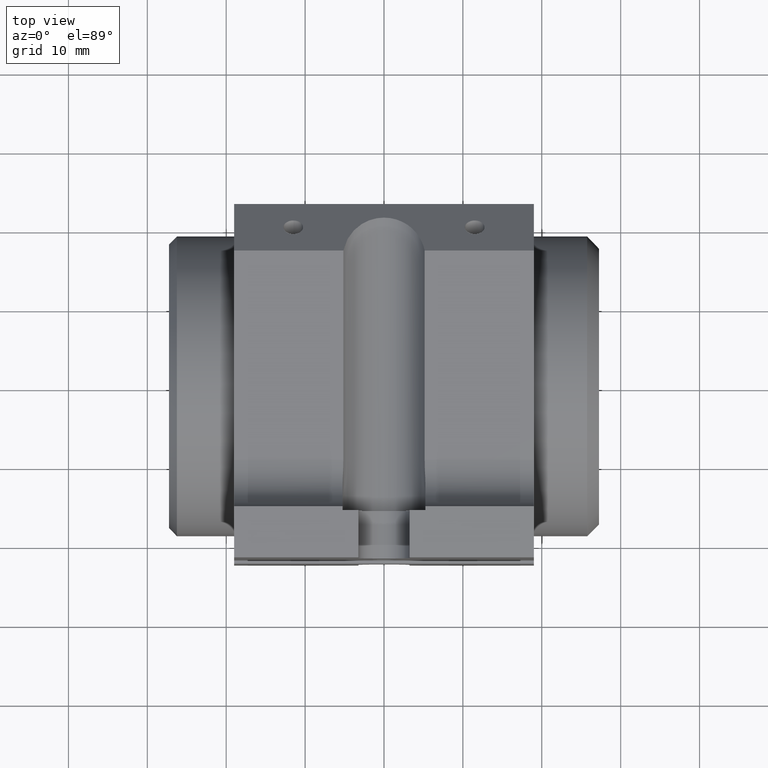
[diagram: clean part render]
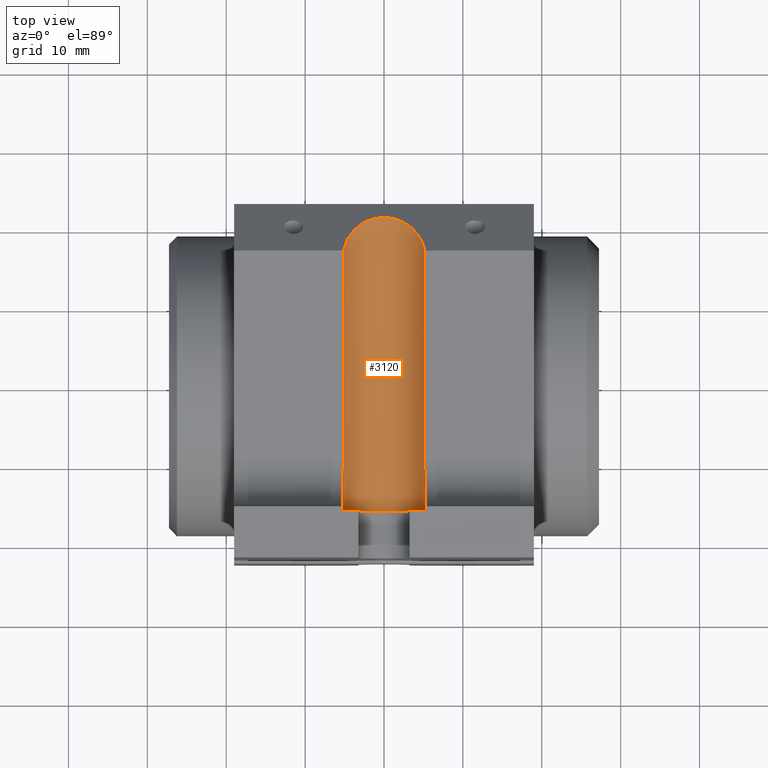
[diagram: same view with one face highlighted and labeled with its STEP entity id]
A machine part, top view. The second image highlights one B-rep face of the part: STEP entity #3120.
In plain terms, the highlighted cylindrical surface (partial cylindrical patch) has radius 5.25 mm, axis along (0, 1, 0).
Its self-contained STEP definition (entity closure, byte-faithful):
#15 = CARTESIAN_POINT ( 'NONE',  ( 0.000000000000000000, -16.19999999999999929, 25.00000000000000000 ) ) ;
#41 = CARTESIAN_POINT ( 'NONE',  ( -5.173734023537535087, -10.86710466257910568, 24.10732403996881246 ) ) ;
#215 = CARTESIAN_POINT ( 'NONE',  ( -5.250000000000000000, 22.80000000000000071, 25.00000000000000000 ) ) ;
#382 = CARTESIAN_POINT ( 'NONE',  ( -5.250000000000131450, -12.52433978790710967, 24.67345507139151550 ) ) ;
#409 = VERTEX_POINT ( 'NONE', #1677 ) ;
#478 = CIRCLE ( 'NONE', #2297, 5.250000000000000888 ) ;
#483 = CARTESIAN_POINT ( 'NONE',  ( -5.153882032022072401, 16.80000000000000782, 23.99999999999999289 ) ) ;
#492 = VECTOR ( 'NONE', #5561, 1000.000000000000000 ) ;
#499 = CARTESIAN_POINT ( 'NONE',  ( -5.153882032022072401, 22.80000000000000071, 23.99999999999998224 ) ) ;
#610 = VERTEX_POINT ( 'NONE', #1625 ) ;
#653 = CARTESIAN_POINT ( 'NONE',  ( 5.153882032022034210, 16.80000000000000071, 24.00000000000000000 ) ) ;
#684 = EDGE_CURVE ( 'NONE', #1525, #5983, #4838, .T. ) ;
#733 = DIRECTION ( 'NONE',  ( 0.000000000000000000, 1.000000000000000000, 0.000000000000000000 ) ) ;
#807 = CARTESIAN_POINT ( 'NONE',  ( 5.250000000000000888, -13.01662479035699960, 25.00000000000105871 ) ) ;
#825 = CARTESIAN_POINT ( 'NONE',  ( -5.250000000000000888, -16.19999999999999929, 25.00000000000000000 ) ) ;
#859 = LINE ( 'NONE', #5963, #3015 ) ;
#860 = CARTESIAN_POINT ( 'NONE',  ( 5.153882032021997794, 22.80000000000000071, 24.00000000000000000 ) ) ;
#968 = VERTEX_POINT ( 'NONE', #2658 ) ;
#1012 = CARTESIAN_POINT ( 'NONE',  ( 5.158223795871332840, -10.28769361951409422, 24.02167419147084360 ) ) ;
#1240 = CARTESIAN_POINT ( 'NONE',  ( 0.000000000000000000, 22.80000000000000071, 25.00000000000000000 ) ) ;
#1290 = EDGE_CURVE ( 'NONE', #2561, #610, #5270, .T. ) ;
#1297 = VECTOR ( 'NONE', #4873, 1000.000000000000000 ) ;
#1365 =( BOUNDED_CURVE ( )  B_SPLINE_CURVE ( 3, ( #483, #3057, #6081, #3708 ),
 .UNSPECIFIED., .F., .T. ) 
 B_SPLINE_CURVE_WITH_KNOTS ( ( 4, 4 ),
 ( 4.904036175360107386, 7.662334438999065966 ),
 .UNSPECIFIED. ) 
 CURVE ( )  GEOMETRIC_REPRESENTATION_ITEM ( )  RATIONAL_B_SPLINE_CURVE ( ( 1.000000000000000000, 0.4603174603174609025, 0.4603174603174609025, 1.000000000000000000 ) ) 
 REPRESENTATION_ITEM ( '' )  );
#1483 = ORIENTED_EDGE ( 'NONE', *, *, #5524, .T. ) ;
#1518 = CARTESIAN_POINT ( 'NONE',  ( -5.185001327738721244, -11.15608105725670640, 24.17198743703181307 ) ) ;
#1525 = VERTEX_POINT ( 'NONE', #825 ) ;
#1529 = DIRECTION ( 'NONE',  ( 0.000000000000000000, 0.000000000000000000, 1.000000000000000000 ) ) ;
#1625 = CARTESIAN_POINT ( 'NONE',  ( 5.153882032022036874, -9.700000000000001066, 24.00000000000000000 ) ) ;
#1677 = CARTESIAN_POINT ( 'NONE',  ( 5.250000000000000888, -16.19999999999999929, 25.00000000000000000 ) ) ;
#1794 = CARTESIAN_POINT ( 'NONE',  ( -5.250000000000000888, -13.01662479035699960, 25.00000000000106226 ) ) ;
#1831 = VERTEX_POINT ( 'NONE', #1870 ) ;
#1870 = CARTESIAN_POINT ( 'NONE',  ( -5.153882032022072401, 16.80000000000000782, 23.99999999999999289 ) ) ;
#1872 = DIRECTION ( 'NONE',  ( 0.000000000000000000, 1.000000000000000000, 0.000000000000000000 ) ) ;
#1883 = CARTESIAN_POINT ( 'NONE',  ( 5.173734023537535087, -10.86710466257910568, 24.10732403996881246 ) ) ;
#2052 = CARTESIAN_POINT ( 'NONE',  ( -5.221393684448369044, -11.99771907957374673, 24.42648253353140930 ) ) ;
#2064 = DIRECTION ( 'NONE',  ( 0.000000000000000000, 1.000000000000000000, 0.000000000000000000 ) ) ;
#2089 = CARTESIAN_POINT ( 'NONE',  ( -5.158223795871332840, -10.28769361951409422, 24.02167419147084360 ) ) ;
#2148 = VERTEX_POINT ( 'NONE', #653 ) ;
#2197 = ORIENTED_EDGE ( 'NONE', *, *, #4985, .F. ) ;
#2297 = AXIS2_PLACEMENT_3D ( 'NONE', #15, #2064, #1529 ) ;
#2561 = VERTEX_POINT ( 'NONE', #807 ) ;
#2658 = CARTESIAN_POINT ( 'NONE',  ( -5.153882032022074178, -9.700000000000001066, 23.99999999999999289 ) ) ;
#2773 = DIRECTION ( 'NONE',  ( 0.000000000000000000, 0.000000000000000000, 1.000000000000000000 ) ) ;
#2843 = LINE ( 'NONE', #860, #4325 ) ;
#2924 = CARTESIAN_POINT ( 'NONE',  ( -5.250000000000000888, -13.01662479035699960, 25.00000000000106226 ) ) ;
#2956 = EDGE_LOOP ( 'NONE', ( #2197, #5814, #4259, #3018, #1483, #6096, #4932, #4038 ) ) ;
#3015 = VECTOR ( 'NONE', #1872, 1000.000000000000000 ) ;
#3018 = ORIENTED_EDGE ( 'NONE', *, *, #3627, .F. ) ;
#3043 = LINE ( 'NONE', #499, #492 ) ;
#3057 = CARTESIAN_POINT ( 'NONE',  ( -3.732121471464257212, 24.12758620689655231, 16.67241379310345550 ) ) ;
#3120 = ADVANCED_FACE ( 'NONE', ( #6335 ), #5831, .F. ) ;
#3254 = AXIS2_PLACEMENT_3D ( 'NONE', #1240, #733, #2773 ) ;
#3407 = DIRECTION ( 'NONE',  ( -0.000000000000000000, -1.000000000000000000, 0.000000000000000000 ) ) ;
#3627 = EDGE_CURVE ( 'NONE', #409, #1525, #478, .T. ) ;
#3708 = CARTESIAN_POINT ( 'NONE',  ( 5.153882032022034210, 16.80000000000000071, 24.00000000000000000 ) ) ;
#3824 = EDGE_CURVE ( 'NONE', #1831, #2148, #1365, .T. ) ;
#3953 = EDGE_CURVE ( 'NONE', #2148, #610, #2843, .T. ) ;
#4018 = CARTESIAN_POINT ( 'NONE',  ( 5.221393684448369044, -11.99771907957374673, 24.42648253353140930 ) ) ;
#4038 = ORIENTED_EDGE ( 'NONE', *, *, #3824, .F. ) ;
#4078 = B_SPLINE_CURVE_WITH_KNOTS ( 'NONE', 3,
 ( #2924, #382, #2052, #1518, #41, #2089, #4121, #4089 ),
 .UNSPECIFIED., .F., .F.,
 ( 4, 2, 2, 4 ),
 ( 1.888053658162355340E-15, 0.001746437524642559204, 0.002619656286962895007, 0.003492875049283230594 ),
 .UNSPECIFIED. ) ;
#4089 = CARTESIAN_POINT ( 'NONE',  ( -5.153882032022074178, -9.700000000000001066, 23.99999999999999289 ) ) ;
#4121 = CARTESIAN_POINT ( 'NONE',  ( -5.153882032022075066, -9.995255976049165270, 24.00000000000000000 ) ) ;
#4259 = ORIENTED_EDGE ( 'NONE', *, *, #684, .F. ) ;
#4325 = VECTOR ( 'NONE', #3407, 1000.000000000000000 ) ;
#4489 = CARTESIAN_POINT ( 'NONE',  ( 5.250000000000000888, -13.01662479035699960, 25.00000000000105871 ) ) ;
#4838 = LINE ( 'NONE', #215, #1297 ) ;
#4873 = DIRECTION ( 'NONE',  ( 0.000000000000000000, 1.000000000000000000, 0.000000000000000000 ) ) ;
#4932 = ORIENTED_EDGE ( 'NONE', *, *, #3953, .F. ) ;
#4985 = EDGE_CURVE ( 'NONE', #968, #1831, #3043, .T. ) ;
#5270 = B_SPLINE_CURVE_WITH_KNOTS ( 'NONE', 3,
 ( #4489, #6101, #4018, #6621, #1883, #1012, #5973, #6549 ),
 .UNSPECIFIED., .F., .F.,
 ( 4, 2, 2, 4 ),
 ( 1.888053658162355340E-15, 0.001746437524642557903, 0.002619656286962893273, 0.003492875049283227992 ),
 .UNSPECIFIED. ) ;
#5524 = EDGE_CURVE ( 'NONE', #409, #2561, #859, .T. ) ;
#5561 = DIRECTION ( 'NONE',  ( 0.000000000000000000, 1.000000000000000000, 0.000000000000000000 ) ) ;
#5814 = ORIENTED_EDGE ( 'NONE', *, *, #6411, .F. ) ;
#5831 = CYLINDRICAL_SURFACE ( 'NONE', #3254, 5.250000000000000888 ) ;
#5963 = CARTESIAN_POINT ( 'NONE',  ( 5.250000000000000000, 22.80000000000000071, 25.00000000000000000 ) ) ;
#5973 = CARTESIAN_POINT ( 'NONE',  ( 5.153882032022075066, -9.995255976049165270, 24.00000000000000000 ) ) ;
#5983 = VERTEX_POINT ( 'NONE', #1794 ) ;
#6081 = CARTESIAN_POINT ( 'NONE',  ( 3.732121471464261653, 24.12758620689654165, 16.67241379310346616 ) ) ;
#6096 = ORIENTED_EDGE ( 'NONE', *, *, #1290, .T. ) ;
#6101 = CARTESIAN_POINT ( 'NONE',  ( 5.250000000000131450, -12.52433978790710967, 24.67345507139151550 ) ) ;
#6335 = FACE_OUTER_BOUND ( 'NONE', #2956, .T. ) ;
#6411 = EDGE_CURVE ( 'NONE', #5983, #968, #4078, .T. ) ;
#6549 = CARTESIAN_POINT ( 'NONE',  ( 5.153882032022036874, -9.700000000000001066, 24.00000000000000000 ) ) ;
#6621 = CARTESIAN_POINT ( 'NONE',  ( 5.185001327738721244, -11.15608105725670640, 24.17198743703181307 ) ) ;